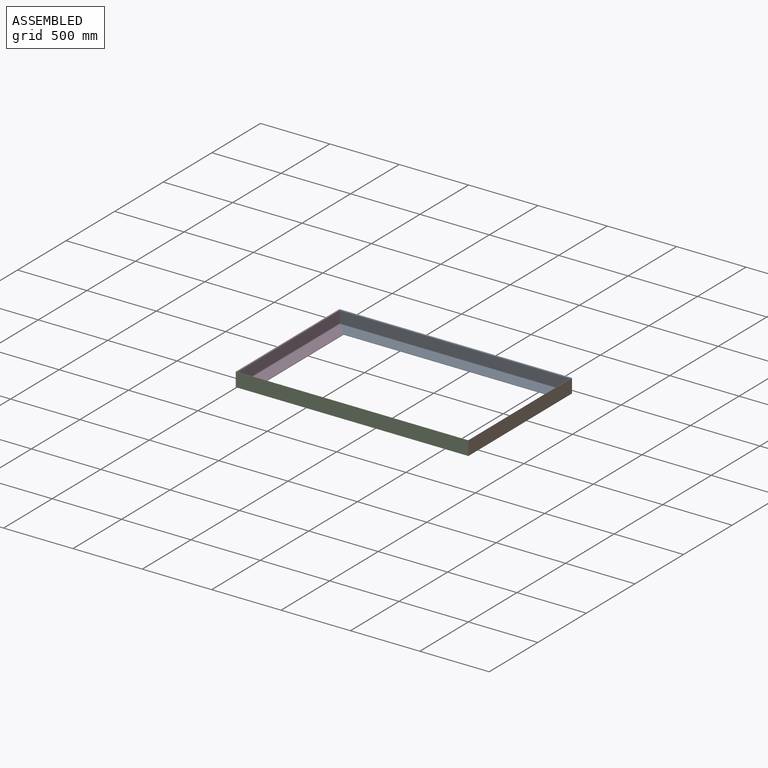
[diagram: assembled view]
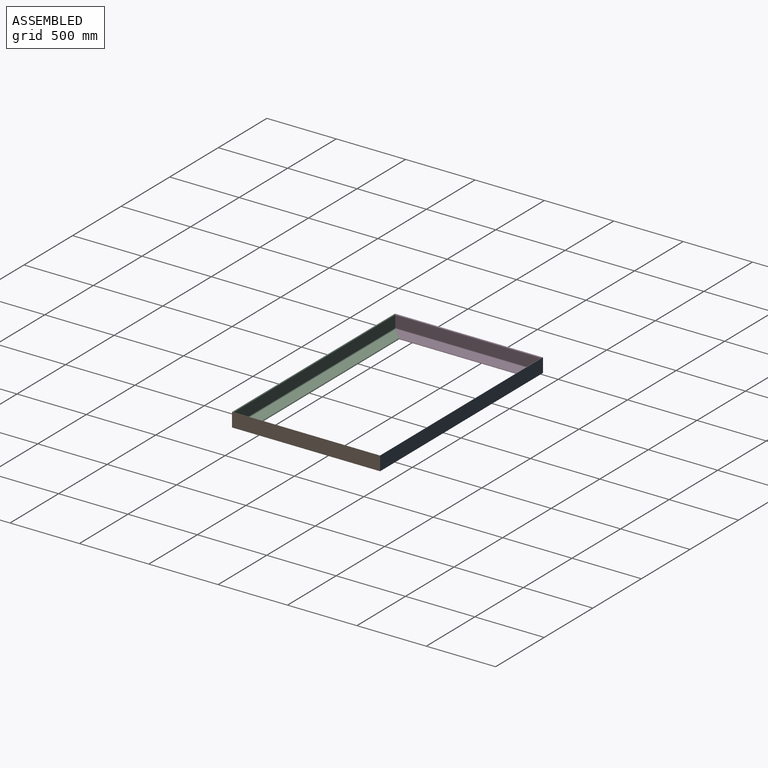
[diagram: assembled view, second angle]
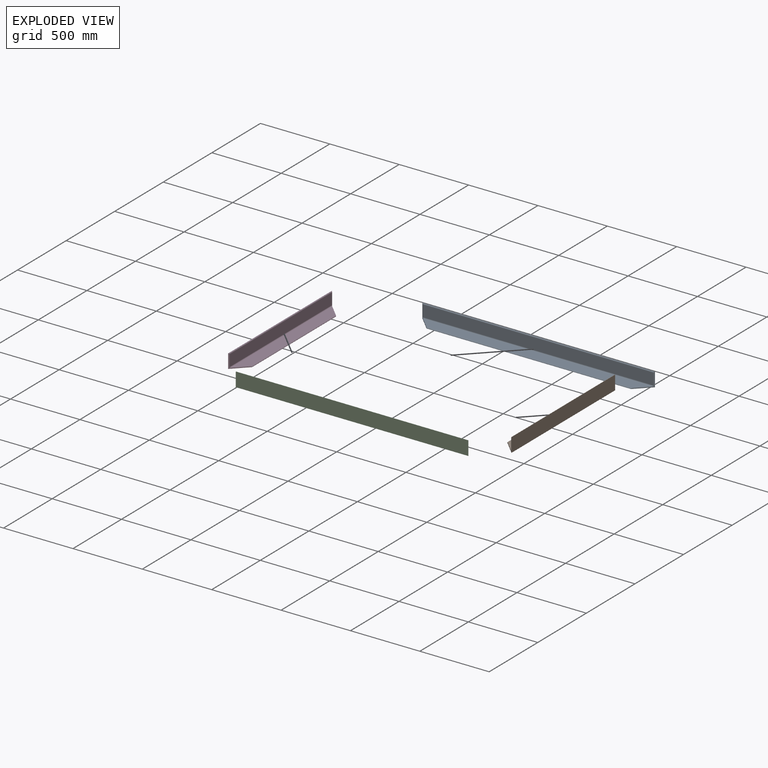
[diagram: exploded view]
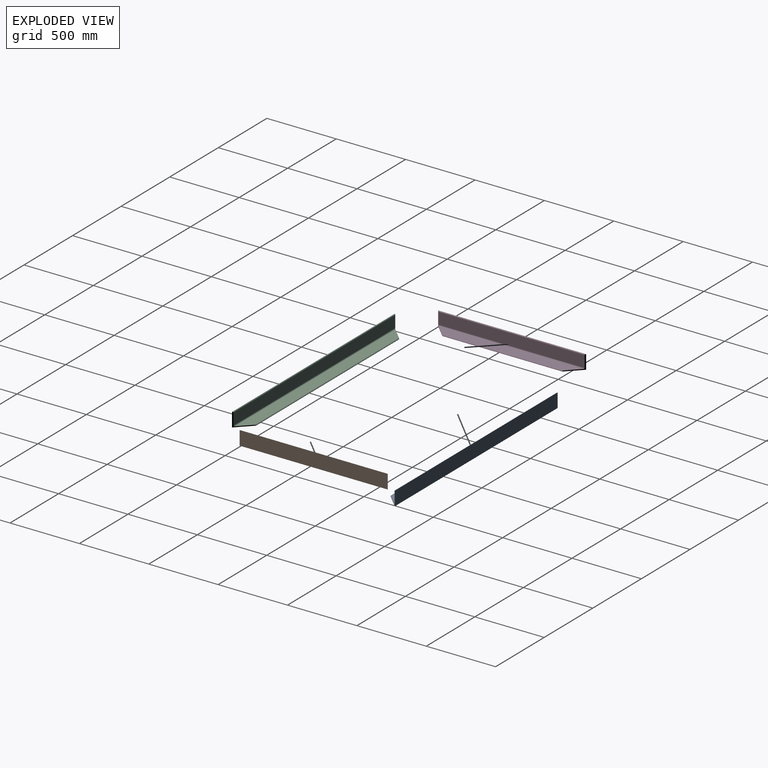
[diagram: exploded view, second angle]
ASSEMBLY  parts=4 mates=3
PART A: 9 faces, bbox 1676.4x101.6x101.6 mm
  f0: plane 1676.4x101.6mm, normal (0,-1,0), area 170322.2mm2, adj f1,f4,f5,f6
  f1: plane 1676.4x101.6mm, normal (0,0,-1), area 159999.7mm2, adj f0,f4,f5,f8
  f2: plane 1651x82.55mm, normal (0,0,1), area 129475.5mm2, adj f4,f5,f7,f8
  f3: plane 1663.7x82.55mm, normal (0,1,0), area 137338.4mm2, adj f4,f5,f6,f7
  f4: plane 101.6x101.6mm, normal (-0.71,0.71,0), area 1755.5mm2, adj f0,f1,f2,f3,f6,f7,f8
  f5: plane 101.6x101.6mm, normal (0.71,0.71,0), area 1755.5mm2, adj f0,f1,f2,f3,f6,f7,f8
  f6: cylinder r=6.35mm len=1676.4mm, axis (-1,0,0), area 16640.7mm2, adj f0,f3,f4,f5
  f7: cylinder r=6.35mm len=1663.7mm, axis (1,0,0), area 16548.6mm2, adj f2,f3,f4,f5
  f8: cylinder r=6.35mm len=1485.9mm, axis (-1,0,0), area 14740.5mm2, adj f1,f2,f4,f5
PART B: 9 faces, bbox 101.6x1066.8x101.6 mm
  f0: plane 1066.8x101.6mm, normal (-1,0,0), area 108386.9mm2, adj f1,f4,f5,f6
  f1: plane 1066.8x101.6mm, normal (0,0,-1), area 98064.3mm2, adj f0,f4,f5,f8
  f2: plane 1041.4x82.55mm, normal (0,0,1), area 79153.1mm2, adj f4,f5,f7,f8
  f3: plane 1054.1x82.55mm, normal (1,0,0), area 87016mm2, adj f4,f5,f6,f7
  f4: plane 101.6x101.6mm, normal (0.71,0.71,0), area 1755.5mm2, adj f0,f1,f2,f3,f6,f7,f8
  f5: plane 101.6x101.6mm, normal (0.71,-0.71,0), area 1755.5mm2, adj f0,f1,f2,f3,f6,f7,f8
  f6: cylinder r=6.35mm len=1066.8mm, axis (0,1,0), area 10560.2mm2, adj f0,f3,f4,f5
  f7: cylinder r=6.35mm len=1054.1mm, axis (0,-1,0), area 10468.1mm2, adj f2,f3,f4,f5
  f8: cylinder r=6.35mm len=876.3mm, axis (0,1,0), area 8660.1mm2, adj f1,f2,f4,f5
PART C: same geometry as A
PART D: same geometry as B
PLACE A rot(axis=(0,0,-1),180deg) t=(-630.45,-280.9,-410.15)mm
PLACE B rot(axis=(0,0,1),180deg) t=(207.75,-120.95,-410.15)mm
PLACE C t=(-630.45,38.99,-410.15)mm
PLACE D t=(-1468.65,-120.95,-410.15)mm
MATE fastened B.f4 <-> C.f5  axis (-0.71,-0.71,0) through (207.75,-654.35,-410.15)mm
MATE fastened A.f5 <-> D.f4  axis (-0.71,-0.71,0) through (-1468.65,412.45,-410.15)mm
MATE fastened D.f5 <-> C.f4  axis (0.71,-0.71,0) through (-1468.65,-654.35,-410.15)mm
